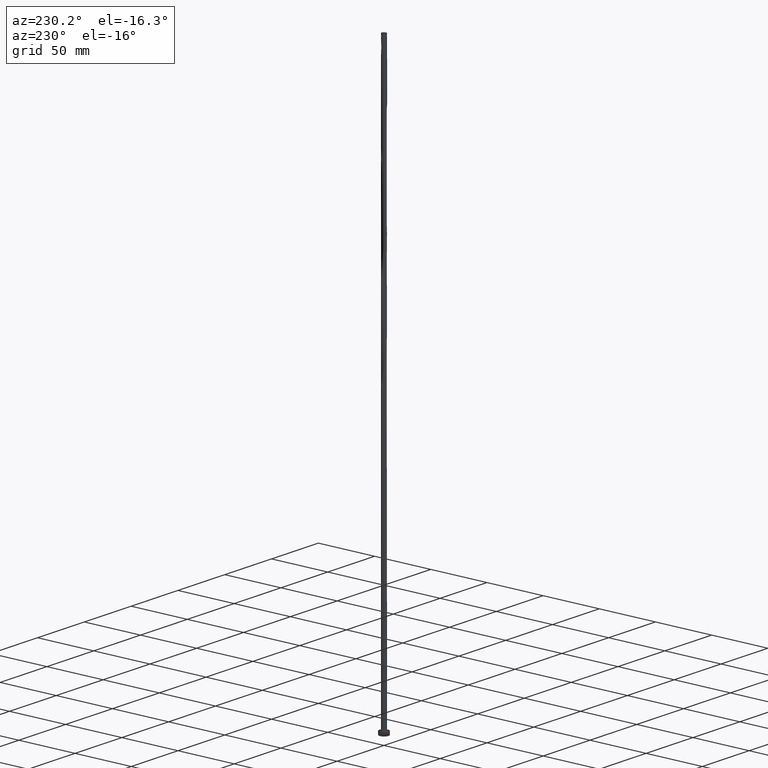
[diagram: clean part render]
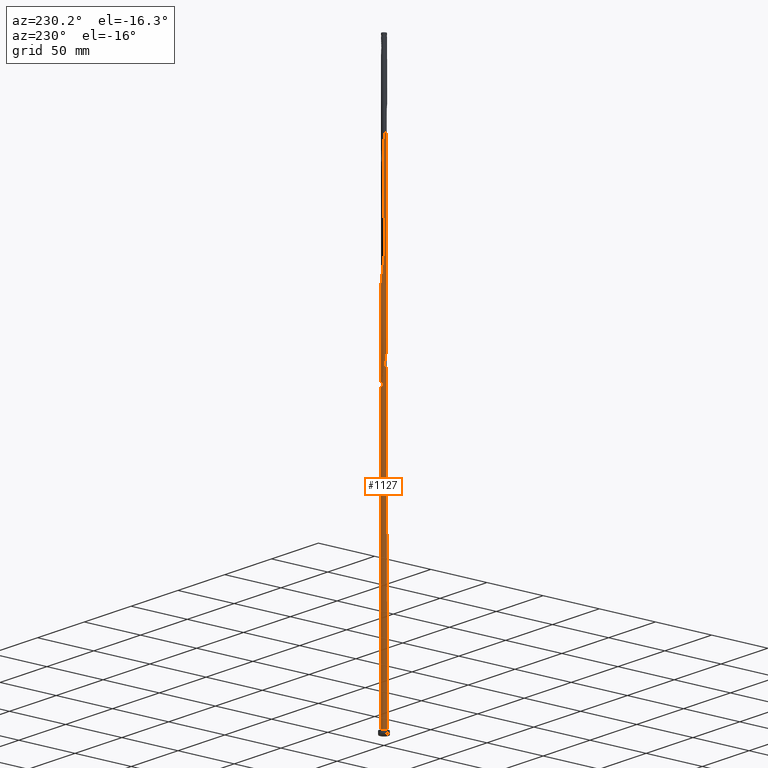
[diagram: same view with one face highlighted and labeled with its STEP entity id]
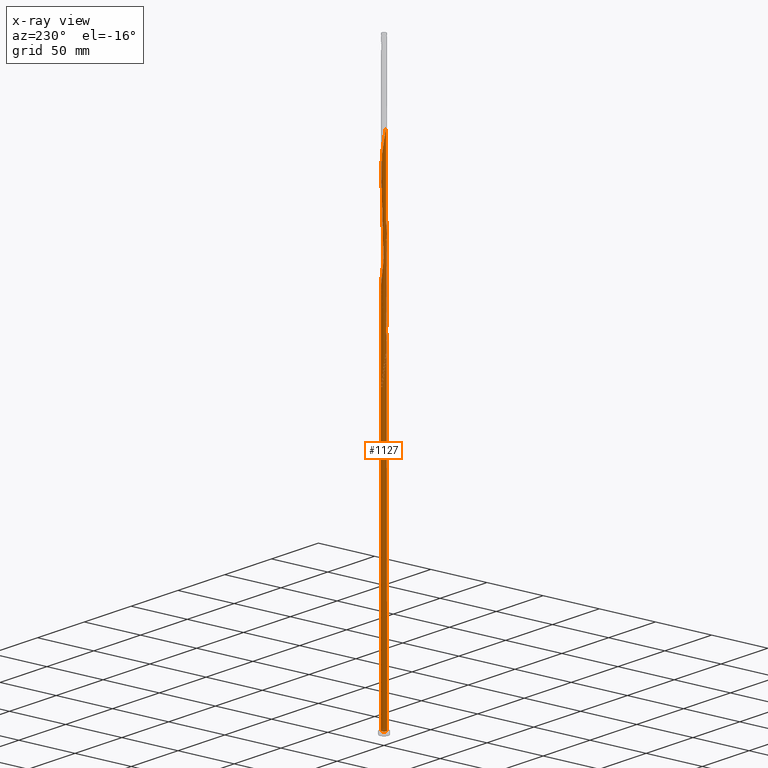
[diagram: x-ray of the same camera — body ghosted, the highlighted face saturated]
A machine part, auxiliary view. The second image highlights one B-rep face of the part: STEP entity #1127.
The next image is the same camera in x-ray: the body ghosted, the highlighted face saturated — about 0% of this face is hidden behind the body in this view.
In plain terms, the highlighted cylindrical surface (bore or boss wall) has radius 2.1 mm, axis along (-0, -0, -1).
Its self-contained STEP definition (entity closure, byte-faithful):
#1 = CARTESIAN_POINT ( 'NONE',  ( -1.478994593158978743, -1.490830303356663666, 359.5799604963763159 ) ) ;
#9 = CARTESIAN_POINT ( 'NONE',  ( -1.002131721024823729, 1.857016819535125318, 334.8403771630430583 ) ) ;
#18 = CARTESIAN_POINT ( 'NONE',  ( -0.4178947235847852992, 2.058000000000002494, 330.9341271630432288 ) ) ;
#29 = ORIENTED_EDGE ( 'NONE', *, *, #649, .F. ) ;
#30 = CARTESIAN_POINT ( 'NONE',  ( 1.936928890876853826, 0.8113608763593270767, 396.0382938297097439 ) ) ;
#35 = CARTESIAN_POINT ( 'NONE',  ( -2.100000000000000089, 1.788810787009988624E-15, 271.0909908077065893 ) ) ;
#49 = CARTESIAN_POINT ( 'NONE',  ( 0.6205900316938298689, -2.016840962218582778, 290.5695438297098576 ) ) ;
#59 = CARTESIAN_POINT ( 'NONE',  ( 2.021723321449560462, -0.6044950502919640423, 303.5903771630430583 ) ) ;
#74 = CARTESIAN_POINT ( 'NONE',  ( 1.332160624413993633, 1.636498556394550219, 319.2153771630431152 ) ) ;
#84 = CARTESIAN_POINT ( 'NONE',  ( 0.1984611935938575267, 2.100807608744272859, 327.0278771630431152 ) ) ;
#90 =( BOUNDED_CURVE ( )  B_SPLINE_CURVE ( 2, ( #35, #837, #373, #1291, #1890, #1143, #664, #337, #404, #1020, #1490, #744, #1624, #1331, #1463, #565, #575, #1474, #1197, #585, #432 ),
 .UNSPECIFIED., .F., .T. ) 
 B_SPLINE_CURVE_WITH_KNOTS ( ( 3, 2, 2, 2, 2, 2, 2, 2, 2, 2, 3 ),
 ( 0.9295286902180870392, 0.9296875000000000000, 0.9375000000000000000, 0.9453125000000000000, 0.9531250000000000000, 0.9609375000000000000, 0.9687500000000000000, 0.9765625000000000000, 0.9843750000000000000, 0.9921875000000000000, 1.000000000000000000 ),
 .UNSPECIFIED. ) 
 CURVE ( )  GEOMETRIC_REPRESENTATION_ITEM ( )  RATIONAL_B_SPLINE_CURVE ( ( 0.9089165573360054040, 0.9090019243629102741, 0.9090909090910022083, 0.9047133878839080934, 0.9090909090910022083, 0.9047133878839080934, 0.9090909090910022083, 0.9047133878839080934, 0.9090909090910022083, 0.9047133878839080934, 0.9090909090910022083, 0.9047133878839080934, 0.9090909090910022083, 0.9047133878839080934, 0.9090909090910022083, 0.9047133878839080934, 0.9090909090910022083, 0.9047133878839080934, 0.9090909090910022083, 0.9047133878839080934, 0.9090909090910022083 ) ) 
 REPRESENTATION_ITEM ( '' )  );
#130 = CARTESIAN_POINT ( 'NONE',  ( -2.058000000000002494, -0.4178947235847855768, 268.4341271630431152 ) ) ;
#144 = CARTESIAN_POINT ( 'NONE',  ( 1.173646885671800755, -1.741422690719544253, 377.8091271630430583 ) ) ;
#151 = CYLINDRICAL_SURFACE ( 'NONE', #1438, 2.100000000000000089 ) ;
#156 = CARTESIAN_POINT ( 'NONE',  ( -1.345162050318778002, 1.625828561903962965, 337.4445438297098576 ) ) ;
#158 = CARTESIAN_POINT ( 'NONE',  ( -1.478994593158978743, -1.490830303356663666, 276.2466271630430015 ) ) ;
#159 = CARTESIAN_POINT ( 'NONE',  ( -1.173646885671800755, 1.741422690719544253, 252.8091271630430583 ) ) ;
#162 = CARTESIAN_POINT ( 'NONE',  ( 1.857016819535125318, 1.002131721024823507, 314.0070438297098008 ) ) ;
#166 = CARTESIAN_POINT ( 'NONE',  ( -1.625828561903962965, -1.345162050318778224, 358.2778771630430583 ) ) ;
#177 = CARTESIAN_POINT ( 'NONE',  ( 2.099983323262847090, 0.008369110940941233701, 390.8299604963763727 ) ) ;
#186 = CARTESIAN_POINT ( 'NONE',  ( -1.159729562813037074, -1.750721948550796103, 362.1841271630431152 ) ) ;
#197 = ORIENTED_EDGE ( 'NONE', *, *, #413, .F. ) ;
#202 = CARTESIAN_POINT ( 'NONE',  ( -0.9872985012120798487, -1.864945340707043098, 280.1528771630430583 ) ) ;
#204 = CARTESIAN_POINT ( 'NONE',  ( -1.636498556394549997, 1.332160624413993633, 423.3820438297097439 ) ) ;
#221 = CARTESIAN_POINT ( 'NONE',  ( 1.002131721024823729, -1.857016819535125318, 293.1737104963764864 ) ) ;
#231 = CARTESIAN_POINT ( 'NONE',  ( 2.061265465096916216, -0.4014781219429117143, 304.8924604963764295 ) ) ;
#239 = CARTESIAN_POINT ( 'NONE',  ( 2.100000000000000089, 0.000000000000000000, 3.000000000000000000 ) ) ;
#248 = CARTESIAN_POINT ( 'NONE',  ( -2.100000000000003197, -1.192851162997014156E-15, 432.4439301850459856 ) ) ;
#250 = VECTOR ( 'NONE', #1405, 1000.000000000000000 ) ;
#273 = CARTESIAN_POINT ( 'NONE',  ( -2.099159037781422210, -0.2151994154757410904, 267.1320438297097439 ) ) ;
#284 = DIRECTION ( 'NONE',  ( -1.000000000000000000, 0.000000000000000000, 0.000000000000000000 ) ) ;
#287 = DIRECTION ( 'NONE',  ( -0.000000000000000000, -0.000000000000000000, -1.000000000000000000 ) ) ;
#293 = DIRECTION ( 'NONE',  ( 0.000000000000000000, -0.000000000000000000, -1.000000000000000000 ) ) ;
#299 = CARTESIAN_POINT ( 'NONE',  ( 0.4178947235847855213, -2.058000000000002494, 372.6007938297098008 ) ) ;
#302 = DIRECTION ( 'NONE',  ( 0.000000000000000000, 0.000000000000000000, 1.000000000000000000 ) ) ;
#310 = CARTESIAN_POINT ( 'NONE',  ( 0.8113608763593270767, -1.936928890876853826, 375.2049604963764864 ) ) ;
#320 = CARTESIAN_POINT ( 'NONE',  ( -1.173646885671800755, 1.741422690719544253, 336.1424604963764864 ) ) ;
#324 = CARTESIAN_POINT ( 'NONE',  ( -1.750721948550796547, 1.159729562813037074, 258.0174604963764295 ) ) ;
#327 = FACE_OUTER_BOUND ( 'NONE', #1844, .T. ) ;
#331 = CARTESIAN_POINT ( 'NONE',  ( -2.021723321449560462, 0.6044950502919640423, 345.2570438297097439 ) ) ;
#336 = CARTESIAN_POINT ( 'NONE',  ( 0.4178947235847858543, 2.057999999999998941, 247.6007938297097439 ) ) ;
#337 = CARTESIAN_POINT ( 'NONE',  ( -1.857016819535121988, 1.002131721024822619, 264.5278771630430015 ) ) ;
#342 = CARTESIAN_POINT ( 'NONE',  ( 1.159729562813037074, 1.750721948550795881, 403.8507938297098576 ) ) ;
#357 = CARTESIAN_POINT ( 'NONE',  ( 2.016840962218583222, 0.6205900316938290917, 311.4028771630432288 ) ) ;
#364 = CARTESIAN_POINT ( 'NONE',  ( -0.7958967757520214459, -1.943334331078302002, 281.4549604963764864 ) ) ;
#370 = CARTESIAN_POINT ( 'NONE',  ( -2.021723321449560462, 0.6044950502919640423, 261.9237104963764295 ) ) ;
#373 = CARTESIAN_POINT ( 'NONE',  ( -2.099983323262843538, 0.008369110940942560764, 271.0382938297096871 ) ) ;
#377 = CARTESIAN_POINT ( 'NONE',  ( -1.173646885671800755, 1.741422690719544253, 419.4757938297098008 ) ) ;
#402 = CARTESIAN_POINT ( 'NONE',  ( -1.864945340707042432, 0.9872985012120798487, 259.3195438297098008 ) ) ;
#404 = CARTESIAN_POINT ( 'NONE',  ( -1.741422690719540922, 1.173646885671799645, 263.2257938297096871 ) ) ;
#413 = EDGE_CURVE ( 'NONE', #756, #1729, #90, .T. ) ;
#431 = VERTEX_POINT ( 'NONE', #248 ) ;
#432 = CARTESIAN_POINT ( 'NONE',  ( 0.4178947235847858543, 2.057999999999998941, 247.6007938297097439 ) ) ;
#446 = AXIS2_PLACEMENT_3D ( 'NONE', #1689, #293, #284 ) ;
#453 = DIRECTION ( 'NONE',  ( 1.000000000000000000, 0.000000000000000000, 0.000000000000000000 ) ) ;
#459 = CARTESIAN_POINT ( 'NONE',  ( -1.741422690719544253, -1.173646885671800755, 356.9757938297097439 ) ) ;
#466 = CARTESIAN_POINT ( 'NONE',  ( -0.1984611935938573324, -2.100807608744272859, 368.6945438297098008 ) ) ;
#475 = CARTESIAN_POINT ( 'NONE',  ( 2.016840962218583222, 0.6205900316938290917, 394.7362104963764295 ) ) ;
#478 = CARTESIAN_POINT ( 'NONE',  ( 1.750721948550796103, -1.159729562813037074, 299.6841271630430583 ) ) ;
#487 = CARTESIAN_POINT ( 'NONE',  ( -0.2151994154757416733, 2.099159037781422654, 329.6320438297096871 ) ) ;
#498 = ORIENTED_EDGE ( 'NONE', *, *, #1268, .F. ) ;
#499 = CARTESIAN_POINT ( 'NONE',  ( 1.741422690719543365, 1.173646885671801199, 398.6424604963763159 ) ) ;
#518 = VERTEX_POINT ( 'NONE', #1652 ) ;
#530 = CARTESIAN_POINT ( 'NONE',  ( -0.4178947235847852992, 2.058000000000002494, 414.2674604963764864 ) ) ;
#539 = CARTESIAN_POINT ( 'NONE',  ( 0.4178947235847855213, -2.058000000000002494, 289.2674604963764295 ) ) ;
#544 = VERTEX_POINT ( 'NONE', #239 ) ;
#545 = EDGE_CURVE ( 'NONE', #814, #1729, #1282, .T. ) ;
#560 = EDGE_CURVE ( 'NONE', #814, #1909, #860, .T. ) ;
#565 = CARTESIAN_POINT ( 'NONE',  ( -0.6044950502919623769, 2.021723321449557353, 254.1112104963763727 ) ) ;
#574 = CARTESIAN_POINT ( 'NONE',  ( 1.478994593158978965, 1.490830303356663222, 317.9132938297097439 ) ) ;
#575 = CARTESIAN_POINT ( 'NONE',  ( -0.4014781219429094938, 2.061265465096913552, 252.8091271630430583 ) ) ;
#585 = CARTESIAN_POINT ( 'NONE',  ( 0.2151994154757414790, 2.099159037781418657, 248.9028771630430299 ) ) ;
#596 = EDGE_CURVE ( 'NONE', #518, #544, #1941, .T. ) ;
#598 = CARTESIAN_POINT ( 'NONE',  ( 1.490830303356663888, -1.478994593158978965, 297.0799604963764864 ) ) ;
#609 = CARTESIAN_POINT ( 'NONE',  ( -2.099983323262847534, -0.008369110940941979632, 265.8299604963763727 ) ) ;
#617 = CARTESIAN_POINT ( 'NONE',  ( 1.345162050318778002, -1.625828561903962965, 379.1112104963764864 ) ) ;
#621 = CARTESIAN_POINT ( 'NONE',  ( -2.100000000000000089, 0.000000000000000000, 500.0000000000000000 ) ) ;
#626 = CARTESIAN_POINT ( 'NONE',  ( -1.332160624413993855, -1.636498556394549553, 360.8820438297097439 ) ) ;
#631 = LINE ( 'NONE', #776, #1972 ) ;
#635 = CARTESIAN_POINT ( 'NONE',  ( -1.936928890876853826, -0.8113608763593270767, 354.3716271630430015 ) ) ;
#646 = CARTESIAN_POINT ( 'NONE',  ( 1.857016819535125318, 1.002131721024823507, 397.3403771630430583 ) ) ;
#649 = EDGE_CURVE ( 'NONE', #1909, #431, #1875, .T. ) ;
#656 = CARTESIAN_POINT ( 'NONE',  ( 1.478994593158978965, 1.490830303356663222, 401.2466271630431152 ) ) ;
#659 = CARTESIAN_POINT ( 'NONE',  ( 1.864945340707042210, -0.9872985012120809589, 300.9862104963765432 ) ) ;
#664 = CARTESIAN_POINT ( 'NONE',  ( -1.936928890876850495, 0.8113608763593262996, 265.8299604963764295 ) ) ;
#673 = CARTESIAN_POINT ( 'NONE',  ( 2.100807608744272859, -0.1984611935938574157, 306.1945438297098008 ) ) ;
#677 = CARTESIAN_POINT ( 'NONE',  ( 0.8113608763593270767, -1.936928890876853826, 291.8716271630431152 ) ) ;
#691 = CARTESIAN_POINT ( 'NONE',  ( 0.008369110940941396765, -2.099983323262847534, 286.6632938297098008 ) ) ;
#694 = CARTESIAN_POINT ( 'NONE',  ( -1.002131721024823729, 1.857016819535125318, 418.1737104963764864 ) ) ;
#703 = CARTESIAN_POINT ( 'NONE',  ( -0.4014781219429107151, -2.061265465096916216, 284.0591271630430583 ) ) ;
#714 = CARTESIAN_POINT ( 'NONE',  ( -0.6205900316938298689, 2.016840962218582778, 415.5695438297098008 ) ) ;
#744 = CARTESIAN_POINT ( 'NONE',  ( -1.332160624413991190, 1.636498556394547554, 259.3195438297097439 ) ) ;
#756 = VERTEX_POINT ( 'NONE', #1460 ) ;
#758 = CARTESIAN_POINT ( 'NONE',  ( -1.332160624413993855, -1.636498556394549553, 277.5487104963764295 ) ) ;
#771 = CARTESIAN_POINT ( 'NONE',  ( 0.6044950502919642643, 2.021723321449560462, 407.7570438297097439 ) ) ;
#776 = CARTESIAN_POINT ( 'NONE',  ( -2.100000000000000089, 0.000000000000000000, 500.0000000000000000 ) ) ;
#780 = CARTESIAN_POINT ( 'NONE',  ( -1.490830303356664110, 1.478994593158978743, 338.7466271630431152 ) ) ;
#782 = CARTESIAN_POINT ( 'NONE',  ( -1.936928890876853826, -0.8113608763593270767, 271.0382938297096871 ) ) ;
#783 = CARTESIAN_POINT ( 'NONE',  ( -2.100000000000003197, -1.192851162997014156E-15, 265.7772635183794137 ) ) ;
#790 = CARTESIAN_POINT ( 'NONE',  ( -1.857016819535125318, -1.002131721024823729, 355.6737104963764295 ) ) ;
#799 = CARTESIAN_POINT ( 'NONE',  ( -0.6205900316938298689, 2.016840962218582778, 332.2362104963764295 ) ) ;
#803 = ORIENTED_EDGE ( 'NONE', *, *, #560, .F. ) ;
#807 = CARTESIAN_POINT ( 'NONE',  ( 1.625828561903963410, 1.345162050318778002, 316.6112104963765432 ) ) ;
#812 = CARTESIAN_POINT ( 'NONE',  ( 1.943334331078301336, -0.7958967757520214459, 385.6216271630431152 ) ) ;
#814 = VERTEX_POINT ( 'NONE', #1307 ) ;
#822 = CARTESIAN_POINT ( 'NONE',  ( -2.100000000000003197, 0.2026076113508622489, 431.1679500796302591 ) ) ;
#830 = CARTESIAN_POINT ( 'NONE',  ( -0.2151994154757416733, 2.099159037781422654, 412.9653771630431152 ) ) ;
#834 = CARTESIAN_POINT ( 'NONE',  ( 2.099983323262847090, 0.008369110940941233701, 307.4966271630431720 ) ) ;
#837 = CARTESIAN_POINT ( 'NONE',  ( -2.100000000000000089, 0.004184572085947531328, 271.0646372531892894 ) ) ;
#860 =( BOUNDED_CURVE ( )  B_SPLINE_CURVE ( 2, ( #1207, #912, #1232, #1825, #159, #931, #865, #1163, #324, #402, #1548, #370, #1750, #1402, #1668 ),
 .UNSPECIFIED., .F., .T. ) 
 B_SPLINE_CURVE_WITH_KNOTS ( ( 3, 2, 2, 2, 2, 2, 2, 3 ),
 ( 0.000000000000000000, 0.007812500000000000000, 0.01562500000000000000, 0.02343750000000000000, 0.03125000000000000000, 0.03906250000000000000, 0.04687500000000000000, 0.05452869021808703226 ),
 .UNSPECIFIED. ) 
 CURVE ( )  GEOMETRIC_REPRESENTATION_ITEM ( )  RATIONAL_B_SPLINE_CURVE ( ( 0.9090909090910088697, 0.9047133878839146437, 0.9090909090910088697, 0.9047133878839146437, 0.9090909090910088697, 0.9047133878839146437, 0.9090909090910088697, 0.9047133878839146437, 0.9090909090910088697, 0.9047133878839146437, 0.9090909090910088697, 0.9047133878839146437, 0.9090909090910088697, 0.9048023726120065779, 0.9089165573360120653 ) ) 
 REPRESENTATION_ITEM ( '' )  );
#862 = CARTESIAN_POINT ( 'NONE',  ( -2.100000000000003197, -1.192851162997014156E-15, 432.4439301850459856 ) ) ;
#865 = CARTESIAN_POINT ( 'NONE',  ( -1.490830303356664110, 1.478994593158978743, 255.4132938297098008 ) ) ;
#912 = CARTESIAN_POINT ( 'NONE',  ( -0.6205900316938298689, 2.016840962218582778, 248.9028771630431152 ) ) ;
#918 = ORIENTED_EDGE ( 'NONE', *, *, #1388, .T. ) ;
#928 = CARTESIAN_POINT ( 'NONE',  ( 0.7958967757520214459, 1.943334331078301336, 406.4549604963764295 ) ) ;
#931 = CARTESIAN_POINT ( 'NONE',  ( -1.345162050318778002, 1.625828561903962965, 254.1112104963764295 ) ) ;
#937 = CARTESIAN_POINT ( 'NONE',  ( 1.002131721024823729, -1.857016819535125318, 376.5070438297098008 ) ) ;
#947 = CARTESIAN_POINT ( 'NONE',  ( -2.099159037781422210, -0.2151994154757410904, 350.4653771630430583 ) ) ;
#951 = CARTESIAN_POINT ( 'NONE',  ( 1.741422690719543365, 1.173646885671801199, 315.3091271630430015 ) ) ;
#956 = CARTESIAN_POINT ( 'NONE',  ( -1.864945340707042432, 0.9872985012120798487, 342.6528771630431720 ) ) ;
#967 = CARTESIAN_POINT ( 'NONE',  ( 0.9872985012120809589, 1.864945340707042210, 405.1528771630432288 ) ) ;
#974 = CARTESIAN_POINT ( 'NONE',  ( -1.864945340707042432, 0.9872985012120798487, 425.9862104963765432 ) ) ;
#984 = CARTESIAN_POINT ( 'NONE',  ( -0.1984611935938573324, -2.100807608744272859, 285.3612104963766001 ) ) ;
#995 = CARTESIAN_POINT ( 'NONE',  ( -2.021723321449560462, 0.6044950502919640423, 428.5903771630430583 ) ) ;
#1000 = CARTESIAN_POINT ( 'NONE',  ( 1.173646885671800755, -1.741422690719544253, 294.4757938297098008 ) ) ;
#1005 = CARTESIAN_POINT ( 'NONE',  ( -1.345162050318778002, 1.625828561903962965, 420.7778771630431152 ) ) ;
#1020 = CARTESIAN_POINT ( 'NONE',  ( -1.625828561903960079, 1.345162050318776226, 261.9237104963764295 ) ) ;
#1022 = CARTESIAN_POINT ( 'NONE',  ( -2.100000000000003197, -1.192851162997014156E-15, 265.7772635183794137 ) ) ;
#1026 = CARTESIAN_POINT ( 'NONE',  ( 1.936928890876853826, 0.8113608763593270767, 312.7049604963764864 ) ) ;
#1041 = CARTESIAN_POINT ( 'NONE',  ( -1.159729562813037074, -1.750721948550796103, 278.8507938297097439 ) ) ;
#1065 = CARTESIAN_POINT ( 'NONE',  ( 1.943334331078301336, -0.7958967757520214459, 302.2882938297097439 ) ) ;
#1069 = CARTESIAN_POINT ( 'NONE',  ( -1.857016819535125318, -1.002131721024823729, 272.3403771630431152 ) ) ;
#1078 = CARTESIAN_POINT ( 'NONE',  ( -0.4014781219429107151, -2.061265465096916216, 367.3924604963764295 ) ) ;
#1080 = CARTESIAN_POINT ( 'NONE',  ( -2.100000000000003642, -0.004184572085946760243, 265.8036170728967136 ) ) ;
#1086 = CARTESIAN_POINT ( 'NONE',  ( 0.6205900316938298689, -2.016840962218582778, 373.9028771630431720 ) ) ;
#1092 = AXIS2_PLACEMENT_3D ( 'NONE', #1527, #302, #453 ) ;
#1097 = CARTESIAN_POINT ( 'NONE',  ( -2.100807608744272859, 0.1984611935938570826, 347.8612104963765432 ) ) ;
#1108 = CARTESIAN_POINT ( 'NONE',  ( 1.750721948550796103, -1.159729562813037074, 383.0174604963764295 ) ) ;
#1118 = CARTESIAN_POINT ( 'NONE',  ( -1.943334331078301336, 0.7958967757520216679, 343.9549604963764295 ) ) ;
#1127 = ADVANCED_FACE ( 'NONE', ( #327 ), #151, .T. ) ;
#1130 = CARTESIAN_POINT ( 'NONE',  ( 2.099159037781422210, 0.2151994154757417566, 308.7987104963764864 ) ) ;
#1143 = CARTESIAN_POINT ( 'NONE',  ( -2.016840962218578781, 0.6205900316938295358, 267.1320438297097439 ) ) ;
#1144 = CARTESIAN_POINT ( 'NONE',  ( -0.008369110940941129617, 2.099983323262847090, 328.3299604963764295 ) ) ;
#1148 = ORIENTED_EDGE ( 'NONE', *, *, #545, .T. ) ;
#1163 = CARTESIAN_POINT ( 'NONE',  ( -1.636498556394549997, 1.332160624413993633, 256.7153771630431152 ) ) ;
#1188 = CARTESIAN_POINT ( 'NONE',  ( 1.345162050318778002, -1.625828561903962965, 295.7778771630431152 ) ) ;
#1195 = EDGE_CURVE ( 'NONE', #431, #756, #631, .T. ) ;
#1196 = CIRCLE ( 'NONE', #1753, 2.100000000000000089 ) ;
#1197 = CARTESIAN_POINT ( 'NONE',  ( 0.008369110940942453211, 2.099983323262843538, 250.2049604963763727 ) ) ;
#1207 = CARTESIAN_POINT ( 'NONE',  ( -0.4178947235847851882, 2.058000000000002050, 247.6007938297097439 ) ) ;
#1228 = CARTESIAN_POINT ( 'NONE',  ( -0.008369110940941129617, 2.099983323262847090, 411.6632938297098008 ) ) ;
#1232 = CARTESIAN_POINT ( 'NONE',  ( -0.8113608763593270767, 1.936928890876853826, 250.2049604963764295 ) ) ;
#1239 = CARTESIAN_POINT ( 'NONE',  ( -0.7958967757520214459, -1.943334331078302002, 364.7882938297098008 ) ) ;
#1246 = CARTESIAN_POINT ( 'NONE',  ( 1.490830303356663888, -1.478994593158978965, 380.4132938297098008 ) ) ;
#1257 = CARTESIAN_POINT ( 'NONE',  ( 1.625828561903963410, 1.345162050318778002, 399.9445438297098576 ) ) ;
#1263 = CARTESIAN_POINT ( 'NONE',  ( 1.864945340707042210, -0.9872985012120809589, 384.3195438297098008 ) ) ;
#1268 = EDGE_CURVE ( 'NONE', #1909, #518, #1981, .T. ) ;
#1273 = CARTESIAN_POINT ( 'NONE',  ( -1.490830303356664110, 1.478994593158978743, 422.0799604963763727 ) ) ;
#1281 = CARTESIAN_POINT ( 'NONE',  ( -0.6044950502919640423, -2.021723321449560462, 282.7570438297098008 ) ) ;
#1282 = CIRCLE ( 'NONE', #446, 2.100000000000000089 ) ;
#1291 = CARTESIAN_POINT ( 'NONE',  ( -2.099159037781418657, 0.2151994154757413402, 269.7362104963764295 ) ) ;
#1305 = CARTESIAN_POINT ( 'NONE',  ( 0.2151994154757409794, -2.099159037781422210, 287.9653771630430583 ) ) ;
#1307 = CARTESIAN_POINT ( 'NONE',  ( -0.4178947235847851882, 2.058000000000002050, 247.6007938297097439 ) ) ;
#1317 = CARTESIAN_POINT ( 'NONE',  ( -2.061265465096916216, 0.4014781219429105485, 429.8924604963764295 ) ) ;
#1331 = CARTESIAN_POINT ( 'NONE',  ( -0.9872985012120777393, 1.864945340707039989, 256.7153771630430583 ) ) ;
#1362 = CARTESIAN_POINT ( 'NONE',  ( 1.636498556394549331, -1.332160624413993855, 298.3820438297098008 ) ) ;
#1370 = CARTESIAN_POINT ( 'NONE',  ( 0.4014781219429118253, 2.061265465096916216, 409.0591271630431152 ) ) ;
#1374 = CARTESIAN_POINT ( 'NONE',  ( -1.741422690719544253, -1.173646885671800755, 273.6424604963764864 ) ) ;
#1380 = CARTESIAN_POINT ( 'NONE',  ( -1.636498556394549997, 1.332160624413993633, 340.0487104963763727 ) ) ;
#1388 = EDGE_CURVE ( 'NONE', #544, #518, #1196, .T. ) ;
#1389 = CARTESIAN_POINT ( 'NONE',  ( 2.061265465096916216, -0.4014781219429117143, 388.2257938297096871 ) ) ;
#1398 = CARTESIAN_POINT ( 'NONE',  ( 2.058000000000002494, 0.4178947235847854103, 393.4341271630430015 ) ) ;
#1402 = CARTESIAN_POINT ( 'NONE',  ( -2.100000000000002753, 0.2026076113508624155, 264.5012834129635166 ) ) ;
#1405 = DIRECTION ( 'NONE',  ( -0.000000000000000000, -0.000000000000000000, -1.000000000000000000 ) ) ;
#1409 = CARTESIAN_POINT ( 'NONE',  ( -0.9872985012120798487, -1.864945340707043098, 363.4862104963765432 ) ) ;
#1438 = AXIS2_PLACEMENT_3D ( 'NONE', #1671, #287, #1819 ) ;
#1454 = ORIENTED_EDGE ( 'NONE', *, *, #1268, .T. ) ;
#1460 = CARTESIAN_POINT ( 'NONE',  ( -2.100000000000000089, 1.788810787009988624E-15, 271.0909908077065893 ) ) ;
#1463 = CARTESIAN_POINT ( 'NONE',  ( -0.7958967757520200026, 1.943334331078298449, 255.4132938297096871 ) ) ;
#1474 = CARTESIAN_POINT ( 'NONE',  ( -0.1984611935938564720, 2.100807608744269306, 251.5070438297097439 ) ) ;
#1490 = CARTESIAN_POINT ( 'NONE',  ( -1.478994593158975634, 1.490830303356661668, 260.6216271630430583 ) ) ;
#1513 = ORIENTED_EDGE ( 'NONE', *, *, #596, .T. ) ;
#1519 = DIRECTION ( 'NONE',  ( -0.000000000000000000, -0.000000000000000000, -1.000000000000000000 ) ) ;
#1522 = CARTESIAN_POINT ( 'NONE',  ( -1.750721948550796547, 1.159729562813037074, 341.3507938297097439 ) ) ;
#1526 = CARTESIAN_POINT ( 'NONE',  ( -1.625828561903962965, -1.345162050318778224, 274.9445438297098008 ) ) ;
#1527 = CARTESIAN_POINT ( 'NONE',  ( 0.000000000000000000, 0.000000000000000000, 3.000000000000000000 ) ) ;
#1535 = CARTESIAN_POINT ( 'NONE',  ( -0.6044950502919640423, -2.021723321449560462, 366.0903771630430015 ) ) ;
#1545 = CARTESIAN_POINT ( 'NONE',  ( 0.2151994154757409794, -2.099159037781422210, 371.2987104963764295 ) ) ;
#1548 = CARTESIAN_POINT ( 'NONE',  ( -1.943334331078301336, 0.7958967757520216679, 260.6216271630430583 ) ) ;
#1555 = CARTESIAN_POINT ( 'NONE',  ( 0.008369110940941396765, -2.099983323262847534, 369.9966271630432288 ) ) ;
#1591 = CARTESIAN_POINT ( 'NONE',  ( 0.7958967757520214459, 1.943334331078301336, 323.1216271630431152 ) ) ;
#1592 = CARTESIAN_POINT ( 'NONE',  ( -1.943334331078301336, 0.7958967757520216679, 427.2882938297096871 ) ) ;
#1624 = CARTESIAN_POINT ( 'NONE',  ( -1.159729562813034631, 1.750721948550793883, 258.0174604963764864 ) ) ;
#1652 = CARTESIAN_POINT ( 'NONE',  ( -2.100000000000000089, 0.000000000000000000, 3.000000000000000000 ) ) ;
#1668 = CARTESIAN_POINT ( 'NONE',  ( -2.100000000000003197, -1.192851162997014156E-15, 265.7772635183794137 ) ) ;
#1671 = CARTESIAN_POINT ( 'NONE',  ( 0.000000000000000000, 0.000000000000000000, 500.0000000000000000 ) ) ;
#1674 = CARTESIAN_POINT ( 'NONE',  ( -2.016840962218582778, -0.6205900316938298689, 353.0695438297098008 ) ) ;
#1680 = CARTESIAN_POINT ( 'NONE',  ( 0.000000000000000000, 0.000000000000000000, 3.000000000000000000 ) ) ;
#1684 = CARTESIAN_POINT ( 'NONE',  ( 2.021723321449560462, -0.6044950502919640423, 386.9237104963764295 ) ) ;
#1689 = CARTESIAN_POINT ( 'NONE',  ( 0.000000000000000000, 0.000000000000000000, 247.6007938297098008 ) ) ;
#1696 = CARTESIAN_POINT ( 'NONE',  ( -2.099983323262847534, -0.008369110940941979632, 349.1632938297097439 ) ) ;
#1698 = CARTESIAN_POINT ( 'NONE',  ( 1.159729562813037074, 1.750721948550795881, 320.5174604963764295 ) ) ;
#1701 = DIRECTION ( 'NONE',  ( 0.000000000000000000, 0.000000000000000000, 1.000000000000000000 ) ) ;
#1705 = CARTESIAN_POINT ( 'NONE',  ( 2.099159037781422210, 0.2151994154757417566, 392.1320438297097439 ) ) ;
#1707 = CARTESIAN_POINT ( 'NONE',  ( 0.9872985012120809589, 1.864945340707042210, 321.8195438297098008 ) ) ;
#1716 = CARTESIAN_POINT ( 'NONE',  ( 1.332160624413993633, 1.636498556394550219, 402.5487104963764295 ) ) ;
#1724 = ORIENTED_EDGE ( 'NONE', *, *, #1195, .F. ) ;
#1728 = CARTESIAN_POINT ( 'NONE',  ( 2.058000000000002494, 0.4178947235847854103, 310.1007938297096302 ) ) ;
#1729 = VERTEX_POINT ( 'NONE', #336 ) ;
#1747 = CARTESIAN_POINT ( 'NONE',  ( -0.8113608763593270767, 1.936928890876853826, 416.8716271630430583 ) ) ;
#1750 = CARTESIAN_POINT ( 'NONE',  ( -2.061265465096916216, 0.4014781219429105485, 263.2257938297097439 ) ) ;
#1753 = AXIS2_PLACEMENT_3D ( 'NONE', #1680, #1701, #1968 ) ;
#1819 = DIRECTION ( 'NONE',  ( -1.000000000000000000, 0.000000000000000000, 0.000000000000000000 ) ) ;
#1823 = CARTESIAN_POINT ( 'NONE',  ( -2.061265465096916216, 0.4014781219429105485, 346.5591271630431152 ) ) ;
#1825 = CARTESIAN_POINT ( 'NONE',  ( -1.002131721024823729, 1.857016819535125318, 251.5070438297097439 ) ) ;
#1833 = CARTESIAN_POINT ( 'NONE',  ( -0.8113608763593270767, 1.936928890876853826, 333.5382938297096871 ) ) ;
#1841 = CARTESIAN_POINT ( 'NONE',  ( 2.100807608744272859, -0.1984611935938574157, 389.5278771630431720 ) ) ;
#1844 = EDGE_LOOP ( 'NONE', ( #1724, #29, #1454, #1513, #918, #498, #803, #1148, #197 ) ) ;
#1853 = CARTESIAN_POINT ( 'NONE',  ( -2.058000000000002494, -0.4178947235847855768, 351.7674604963764295 ) ) ;
#1864 = CARTESIAN_POINT ( 'NONE',  ( 1.636498556394549331, -1.332160624413993855, 381.7153771630430583 ) ) ;
#1872 = CARTESIAN_POINT ( 'NONE',  ( -1.750721948550796547, 1.159729562813037074, 424.6841271630431152 ) ) ;
#1875 =( BOUNDED_CURVE ( )  B_SPLINE_CURVE ( 2, ( #783, #1080, #609, #273, #130, #1976, #782, #1069, #1374, #1526, #158, #758, #1041, #202, #364, #1281, #703, #984, #691, #1305, #539, #49, #677, #221, #1000, #1188, #598, #1362, #478, #659, #1065, #59, #231, #673, #834, #1130, #1728, #357, #1026, #162, #951, #807, #574, #74, #1698, #1707, #1591, #1905, #1960, #84, #1144, #487, #18, #799, #1833, #9, #320, #156, #780, #1380, #1522, #956, #1118, #331, #1823, #1097, #1696, #947, #1853, #1674, #635, #790, #459, #166, #1, #626, #186, #1409, #1239, #1535, #1078, #466, #1555, #1545, #299, #1086, #310, #937, #144, #617, #1246, #1864, #1108, #1263, #812, #1684, #1389, #1841, #177, #1705, #1398, #475, #30, #646, #499, #1257, #656, #1716, #342, #967, #928, #771, #1370, #1973, #1228, #830, #530, #714, #1747, #694, #377, #1005, #1273, #204, #1872, #974, #1592, #995, #1317, #822, #862 ),
 .UNSPECIFIED., .F., .T. ) 
 B_SPLINE_CURVE_WITH_KNOTS ( ( 3, 2, 2, 2, 2, 2, 2, 2, 2, 2, 2, 2, 2, 2, 2, 2, 2, 2, 2, 2, 2, 2, 2, 2, 2, 2, 2, 2, 2, 2, 2, 2, 2, 2, 2, 2, 2, 2, 2, 2, 2, 2, 2, 2, 2, 2, 2, 2, 2, 2, 2, 2, 2, 2, 2, 2, 2, 2, 2, 2, 2, 2, 2, 2, 2, 3 ),
 ( 0.05452869021808703226, 0.05468750000000000000, 0.06250000000000000000, 0.07031250000000000000, 0.07812500000000000000, 0.08593750000000000000, 0.09375000000000000000, 0.1015625000000000000, 0.1093750000000000000, 0.1171875000000000000, 0.1250000000000000000, 0.1328125000000000000, 0.1406250000000000000, 0.1484375000000000000, 0.1562500000000000000, 0.1640625000000000000, 0.1718750000000000000, 0.1796875000000000000, 0.1875000000000000000, 0.1953125000000000000, 0.2031250000000000000, 0.2109375000000000000, 0.2187500000000000000, 0.2265625000000000000, 0.2343750000000000000, 0.2421875000000000000, 0.2500000000000000000, 0.2578125000000000000, 0.2656250000000000000, 0.2734375000000000000, 0.2812500000000000000, 0.2890625000000000000, 0.2968750000000000000, 0.3046875000000000000, 0.3125000000000000000, 0.3203125000000000000, 0.3281250000000000000, 0.3359375000000000000, 0.3437500000000000000, 0.3515625000000000000, 0.3593750000000000000, 0.3671875000000000000, 0.3750000000000000000, 0.3828125000000000000, 0.3906250000000000000, 0.3984375000000000000, 0.4062500000000000000, 0.4140625000000000000, 0.4218750000000000000, 0.4296875000000000000, 0.4375000000000000000, 0.4453125000000000000, 0.4531250000000000000, 0.4609375000000000000, 0.4687500000000000000, 0.4765625000000000000, 0.4843750000000000000, 0.4921875000000000000, 0.5000000000000000000, 0.5078125000000000000, 0.5156250000000000000, 0.5234375000000000000, 0.5312500000000000000, 0.5390625000000000000, 0.5468750000000000000, 0.5545286902180870392 ),
 .UNSPECIFIED. ) 
 CURVE ( )  GEOMETRIC_REPRESENTATION_ITEM ( )  RATIONAL_B_SPLINE_CURVE ( ( 0.9089165573360120653, 0.9090019243629169354, 0.9090909090910088697, 0.9047133878839146437, 0.9090909090910088697, 0.9047133878839146437, 0.9090909090910088697, 0.9047133878839146437, 0.9090909090910088697, 0.9047133878839146437, 0.9090909090910088697, 0.9047133878839146437, 0.9090909090910088697, 0.9047133878839146437, 0.9090909090910088697, 0.9047133878839146437, 0.9090909090910088697, 0.9047133878839146437, 0.9090909090910088697, 0.9047133878839146437, 0.9090909090910088697, 0.9047133878839146437, 0.9090909090910088697, 0.9047133878839146437, 0.9090909090910088697, 0.9047133878839146437, 0.9090909090910088697, 0.9047133878839146437, 0.9090909090910088697, 0.9047133878839146437, 0.9090909090910088697, 0.9047133878839146437, 0.9090909090910088697, 0.9047133878839146437, 0.9090909090910088697, 0.9047133878839146437, 0.9090909090910088697, 0.9047133878839146437, 0.9090909090910088697, 0.9047133878839146437, 0.9090909090910088697, 0.9047133878839146437, 0.9090909090910088697, 0.9047133878839146437, 0.9090909090910088697, 0.9047133878839146437, 0.9090909090910088697, 0.9047133878839146437, 0.9090909090910088697, 0.9047133878839146437, 0.9090909090910088697, 0.9047133878839146437, 0.9090909090910088697, 0.9047133878839146437, 0.9090909090910088697, 0.9047133878839146437, 0.9090909090910088697, 0.9047133878839146437, 0.9090909090910088697, 0.9047133878839146437, 0.9090909090910088697, 0.9047133878839146437, 0.9090909090910088697, 0.9047133878839146437, 0.9090909090910088697, 0.9047133878839146437, 0.9090909090910088697, 0.9047133878839146437, 0.9090909090910088697, 0.9047133878839146437, 0.9090909090910088697, 0.9047133878839146437, 0.9090909090910088697, 0.9047133878839146437, 0.9090909090910088697, 0.9047133878839146437, 0.9090909090910088697, 0.9047133878839146437, 0.9090909090910088697, 0.9047133878839146437, 0.9090909090910088697, 0.9047133878839146437, 0.9090909090910088697, 0.9047133878839146437, 0.9090909090910088697, 0.9047133878839146437, 0.9090909090910088697, 0.9047133878839146437, 0.9090909090910088697, 0.9047133878839146437, 0.9090909090910088697, 0.9047133878839146437, 0.9090909090910088697, 0.9047133878839146437, 0.9090909090910088697, 0.9047133878839146437, 0.9090909090910088697, 0.9047133878839146437, 0.9090909090910088697, 0.9047133878839146437, 0.9090909090910088697, 0.9047133878839146437, 0.9090909090910088697, 0.9047133878839146437, 0.9090909090910088697, 0.9047133878839146437, 0.9090909090910088697, 0.9047133878839146437, 0.9090909090910088697, 0.9047133878839146437, 0.9090909090910088697, 0.9047133878839146437, 0.9090909090910088697, 0.9047133878839146437, 0.9090909090910088697, 0.9047133878839146437, 0.9090909090910088697, 0.9047133878839146437, 0.9090909090910088697, 0.9047133878839146437, 0.9090909090910088697, 0.9047133878839146437, 0.9090909090910088697, 0.9047133878839146437, 0.9090909090910088697, 0.9047133878839146437, 0.9090909090910088697, 0.9047133878839146437, 0.9090909090910088697, 0.9048023726120064669, 0.9089165573360121764 ) ) 
 REPRESENTATION_ITEM ( '' )  );
#1890 = CARTESIAN_POINT ( 'NONE',  ( -2.057999999999998941, 0.4178947235847854658, 268.4341271630430015 ) ) ;
#1905 = CARTESIAN_POINT ( 'NONE',  ( 0.6044950502919642643, 2.021723321449560462, 324.4237104963763727 ) ) ;
#1909 = VERTEX_POINT ( 'NONE', #1022 ) ;
#1941 = CIRCLE ( 'NONE', #1092, 2.100000000000000089 ) ;
#1960 = CARTESIAN_POINT ( 'NONE',  ( 0.4014781219429118253, 2.061265465096916216, 325.7257938297098576 ) ) ;
#1968 = DIRECTION ( 'NONE',  ( 1.000000000000000000, 0.000000000000000000, 0.000000000000000000 ) ) ;
#1972 = VECTOR ( 'NONE', #1519, 1000.000000000000000 ) ;
#1973 = CARTESIAN_POINT ( 'NONE',  ( 0.1984611935938575267, 2.100807608744272859, 410.3612104963764864 ) ) ;
#1976 = CARTESIAN_POINT ( 'NONE',  ( -2.016840962218582778, -0.6205900316938298689, 269.7362104963764864 ) ) ;
#1981 = LINE ( 'NONE', #621, #250 ) ;